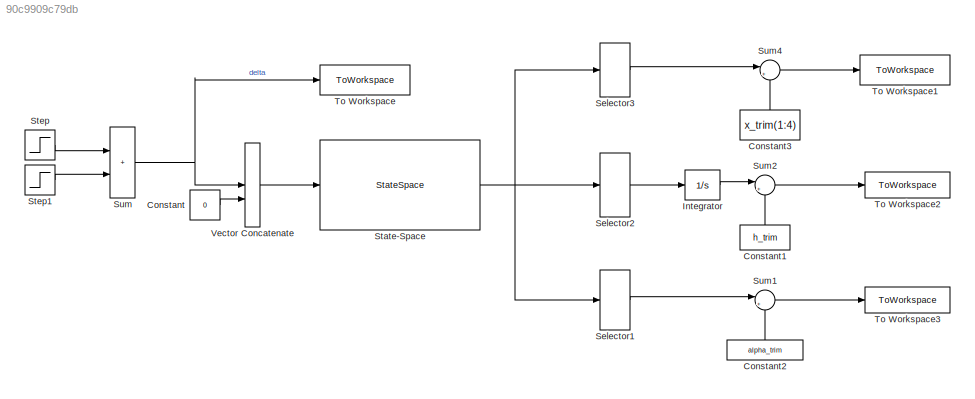
MODEL slx_90c9909c79db
KIND model
CONFIG AbsTol = 1e-8
CONFIG EnableMultiTasking = off
CONFIG FixedStep = auto
CONFIG MaxStep = auto
CONFIG MinStep = auto
CONFIG RelTol = 1e-6
CONFIG SampleTimeConstraint = Unconstrained
CONFIG SolverName = ode45
CONFIG StartTime = 0.0
CONFIG StopTime = 100
BLOCK [Constant] Constant
  Value = 0
BLOCK [Constant] Constant1
  NameLocation = right
  Value = h_trim
BLOCK [Constant] Constant2
  NameLocation = right
  Value = alpha_trim
BLOCK [Constant] Constant3
  NameLocation = right
  Value = x_trim(1:4)
BLOCK [Integrator] Integrator
BLOCK [Selector] Selector1
  IndexOptions = Index vector (dialog)
  Indices = [6]
  InputPortWidth = 6
  OutputSizes = 1
BLOCK [Selector] Selector2
  IndexOptions = Index vector (dialog)
  Indices = [5]
  InputPortWidth = 6
  OutputSizes = 1
BLOCK [Selector] Selector3
  IndexOptions = Index vector (dialog)
  Indices = [1 2 3 4]
  InputPortWidth = 6
  OutputSizes = 1
BLOCK [StateSpace] State-Space
  A = A
  B = B
  C = C
  D = D
  InitialCondition = zeros(4,1)
BLOCK [Step] Step
  After = - pi/180
  SampleTime = 0
  Time = 5
BLOCK [Step] Step1
  After = (pi/180)
  SampleTime = 0
  Time = 10
BLOCK [Sum] Sum
  IconShape = rectangular
BLOCK [Sum] Sum1
  Inputs = |++
BLOCK [Sum] Sum2
  Inputs = |++
BLOCK [Sum] Sum4
  Inputs = |++
BLOCK [ToWorkspace] To Workspace
  FixptAsFi = on
  MaxDataPoints = inf
  SampleTime = -1
  VariableName = delta
BLOCK [ToWorkspace] To Workspace1
  FixptAsFi = on
  MaxDataPoints = inf
  SampleTime = -1
  Save2DSignal = 2-D array (concatenate along first dimension)
  SaveFormat = Structure
  VariableName = x_lin
BLOCK [ToWorkspace] To Workspace2
  FixptAsFi = on
  MaxDataPoints = inf
  SampleTime = -1
  Save2DSignal = 2-D array (concatenate along first dimension)
  VariableName = h_lin
BLOCK [ToWorkspace] To Workspace3
  FixptAsFi = on
  MaxDataPoints = inf
  SampleTime = -1
  VariableName = alpha_lin
BLOCK [Concatenate] Vector Concatenate
LINE Constant1:1 -> Sum2:2
LINE Constant2:1 -> Sum1:2
LINE Constant3:1 -> Sum4:2
LINE Constant:1 -> Vector Concatenate:2
LINE Integrator:1 -> Sum2:1
LINE Selector1:1 -> Sum1:1
LINE Selector2:1 -> Integrator:1
LINE Selector3:1 -> Sum4:1
NET State-Space:1 -> Selector1:1, Selector2:1, Selector3:1
LINE Step1:1 -> Sum:2
LINE Step:1 -> Sum:1
LINE Sum1:1 -> To Workspace3:1
LINE Sum2:1 -> To Workspace2:1
LINE Sum4:1 -> To Workspace1:1
NET Sum:1 -> To Workspace:1, Vector Concatenate:1
LINE Vector Concatenate:1 -> State-Space:1
note: NET lines group one-source signal fan-out (src -> all destinations, sorted); 1:1 wires keep LINE
